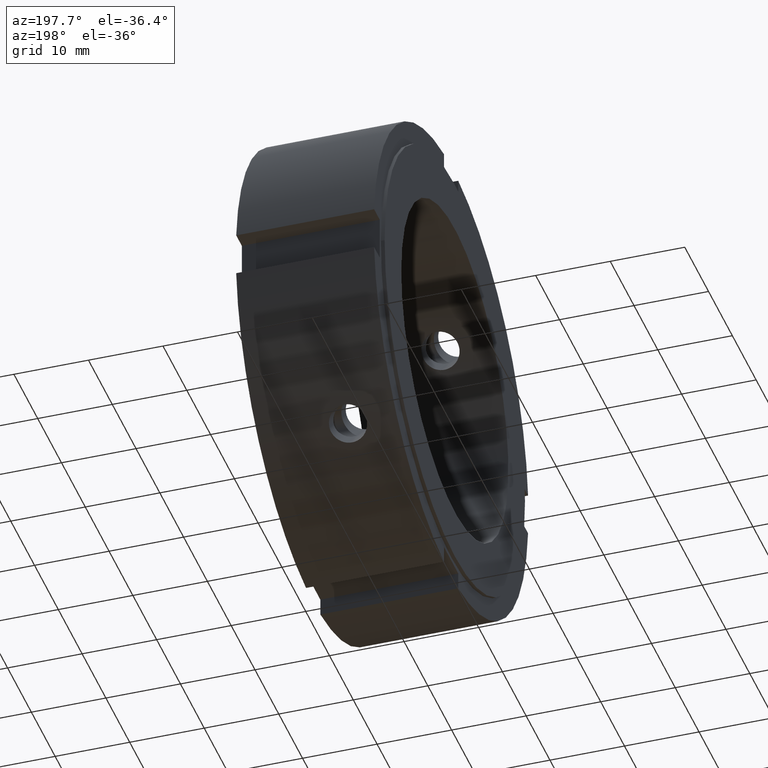
[diagram: clean part render]
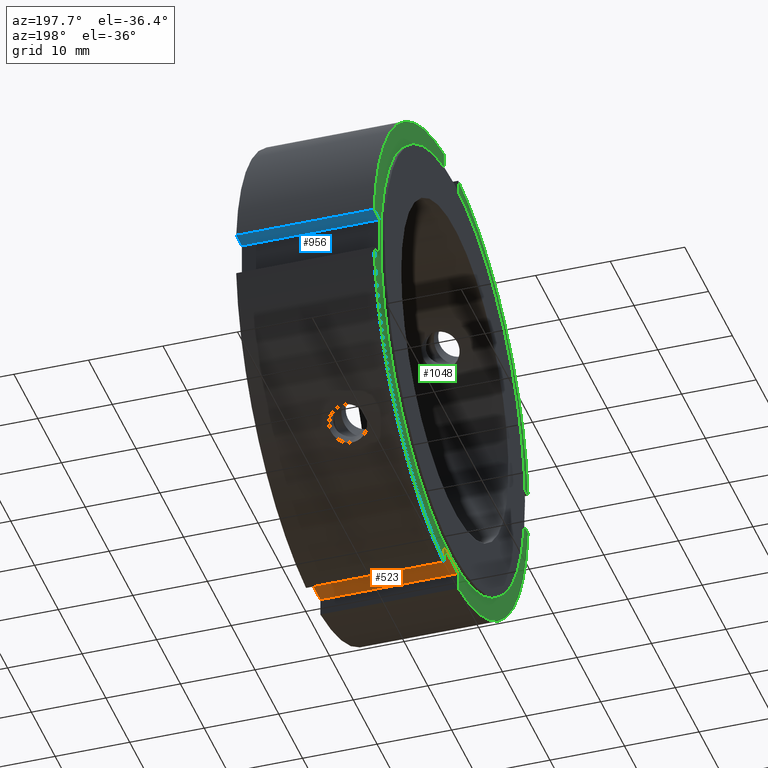
[diagram: same view with three faces highlighted in distinct colors, each labeled with its STEP entity id]
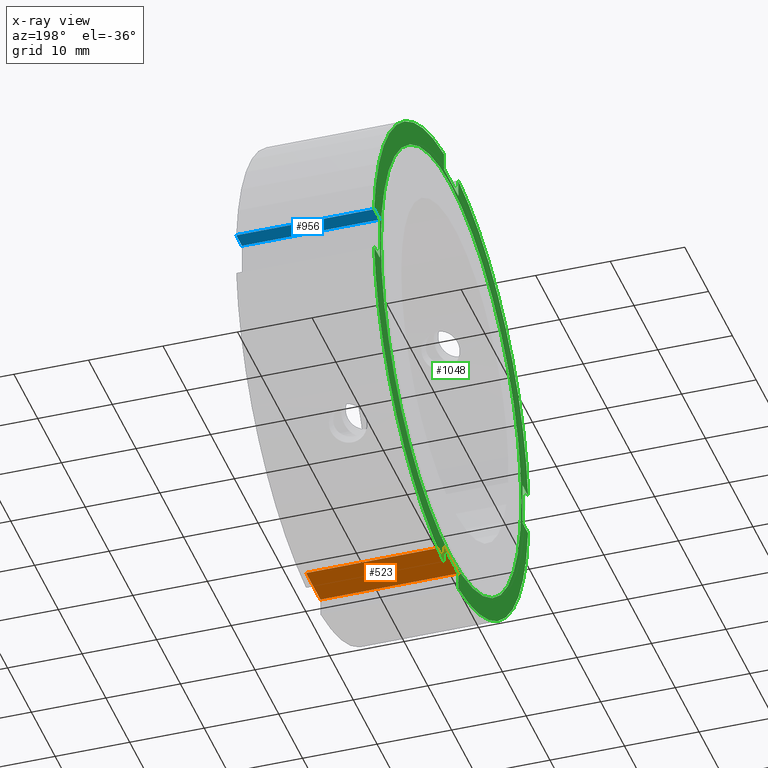
[diagram: x-ray of the same camera — body ghosted, the three highlighted faces saturated]
A machine part, auxiliary view with three faces highlighted in distinct colors.
The next image is the same camera in x-ray (body ghosted, the three faces saturated) — at least one of them is partly hidden behind the body in this view.
Their STEP definitions:

[orange] entity #523 — the highlighted planar face has unit normal (0, 0, 1).
#427=CARTESIAN_POINT('',(0.499999999999994,-3.000000000000005,-30.0));
#428=VERTEX_POINT('',#427);
#437=CARTESIAN_POINT('',(18.999999999999993,-3.000000000000005,-30.0));
#438=VERTEX_POINT('',#437);
#439=CARTESIAN_POINT('',(18.999999999999993,-3.000000000000005,-30.0));
#440=DIRECTION('',(-1.0,0.0,0.0));
#441=VECTOR('',#440,18.500000000000000);
#442=LINE('',#439,#441);
#443=EDGE_CURVE('',#438,#428,#442,.T.);
#469=CARTESIAN_POINT('',(0.499999999999994,2.999999999999994,-30.0));
#470=VERTEX_POINT('',#469);
#485=CARTESIAN_POINT('',(18.999999999999993,2.999999999999994,-30.0));
#486=VERTEX_POINT('',#485);
#493=CARTESIAN_POINT('',(18.999999999999993,2.999999999999994,-30.0));
#494=DIRECTION('',(-1.0,0.0,0.0));
#495=VECTOR('',#494,18.500000000000000);
#496=LINE('',#493,#495);
#497=EDGE_CURVE('',#486,#470,#496,.T.);
#502=CARTESIAN_POINT('',(18.999999999999993,2.999999999999994,-30.0));
#503=DIRECTION('',(0.0,0.0,1.0));
#504=DIRECTION('',(0.0,-1.0,0.0));
#505=AXIS2_PLACEMENT_3D('',#502,#503,#504);
#506=PLANE('',#505);
#507=CARTESIAN_POINT('',(0.499999999999993,2.999999999999993,-29.999999999999996));
#508=DIRECTION('',(0.0,-1.0,0.0));
#509=VECTOR('',#508,5.999999999999996);
#510=LINE('',#507,#509);
#511=EDGE_CURVE('',#470,#428,#510,.T.);
#512=ORIENTED_EDGE('',*,*,#511,.F.);
#513=ORIENTED_EDGE('',*,*,#497,.F.);
#514=CARTESIAN_POINT('',(18.999999999999993,-3.000000000000005,-29.999999999999996));
#515=DIRECTION('',(0.0,1.0,0.0));
#516=VECTOR('',#515,6.0);
#517=LINE('',#514,#516);
#518=EDGE_CURVE('',#438,#486,#517,.T.);
#519=ORIENTED_EDGE('',*,*,#518,.F.);
#520=ORIENTED_EDGE('',*,*,#443,.T.);
#521=EDGE_LOOP('',(#512,#513,#519,#520));
#522=FACE_OUTER_BOUND('',#521,.T.);
#523=ADVANCED_FACE('',(#522),#506,.F.);

[blue] entity #956 — the highlighted planar face has unit normal (0, 0, 1).
#734=CARTESIAN_POINT('',(18.999999999999993,32.361242250568814,2.999999999999999));
#735=VERTEX_POINT('',#734);
#743=CARTESIAN_POINT('',(0.499999999999994,32.361242250568807,2.999999999999999));
#744=VERTEX_POINT('',#743);
#745=CARTESIAN_POINT('',(18.999999999999993,32.361242250568814,2.999999999999999));
#746=DIRECTION('',(-1.0,0.0,0.0));
#747=VECTOR('',#746,18.500000000000000);
#748=LINE('',#745,#747);
#749=EDGE_CURVE('',#735,#744,#748,.T.);
#866=CARTESIAN_POINT('',(18.999999999999993,30.0,2.999999999999999));
#867=VERTEX_POINT('',#866);
#874=CARTESIAN_POINT('',(18.999999999999993,30.0,2.999999999999999));
#875=DIRECTION('',(0.0,1.0,0.0));
#876=VECTOR('',#875,2.361242250568814);
#877=LINE('',#874,#876);
#878=EDGE_CURVE('',#867,#735,#877,.T.);
#933=CARTESIAN_POINT('',(18.999999999999993,32.500000000000000,2.999999999999999));
#934=DIRECTION('',(0.0,0.0,1.0));
#935=DIRECTION('',(1.0,0.0,0.0));
#936=AXIS2_PLACEMENT_3D('',#933,#934,#935);
#937=PLANE('',#936);
#938=CARTESIAN_POINT('',(0.499999999999994,30.0,2.999999999999999));
#939=VERTEX_POINT('',#938);
#940=CARTESIAN_POINT('',(0.499999999999993,32.361242250568807,2.999999999999999));
#941=DIRECTION('',(0.0,-1.0,0.0));
#942=VECTOR('',#941,2.361242250568807);
#943=LINE('',#940,#942);
#944=EDGE_CURVE('',#744,#939,#943,.T.);
#945=ORIENTED_EDGE('',*,*,#944,.F.);
#946=ORIENTED_EDGE('',*,*,#749,.F.);
#947=ORIENTED_EDGE('',*,*,#878,.F.);
#948=CARTESIAN_POINT('',(18.999999999999993,30.0,2.999999999999999));
#949=DIRECTION('',(-1.0,0.0,0.0));
#950=VECTOR('',#949,18.500000000000000);
#951=LINE('',#948,#950);
#952=EDGE_CURVE('',#867,#939,#951,.T.);
#953=ORIENTED_EDGE('',*,*,#952,.T.);
#954=EDGE_LOOP('',(#945,#946,#947,#953));
#955=FACE_OUTER_BOUND('',#954,.T.);
#956=ADVANCED_FACE('',(#955),#937,.F.);

[green] entity #1048 — the highlighted planar face has unit normal (-1, 0, 0).
#427=CARTESIAN_POINT('',(0.499999999999994,-3.000000000000005,-30.0));
#428=VERTEX_POINT('',#427);
#429=CARTESIAN_POINT('',(0.499999999999994,-3.000000000000005,-32.361242250568807));
#430=VERTEX_POINT('',#429);
#431=CARTESIAN_POINT('',(0.499999999999993,-3.000000000000007,-30.0));
#432=DIRECTION('',(0.0,0.0,-1.0));
#433=VECTOR('',#432,2.361242250568807);
#434=LINE('',#431,#433);
#435=EDGE_CURVE('',#428,#430,#434,.T.);
#467=CARTESIAN_POINT('',(0.499999999999994,2.999999999999993,-32.361242250568807));
#468=VERTEX_POINT('',#467);
#469=CARTESIAN_POINT('',(0.499999999999994,2.999999999999994,-30.0));
#470=VERTEX_POINT('',#469);
#471=CARTESIAN_POINT('',(0.499999999999993,2.999999999999994,-32.361242250568807));
#472=DIRECTION('',(0.0,0.0,1.0));
#473=VECTOR('',#472,2.361242250568807);
#474=LINE('',#471,#473);
#475=EDGE_CURVE('',#468,#470,#474,.T.);
#507=CARTESIAN_POINT('',(0.499999999999993,2.999999999999993,-29.999999999999996));
#508=DIRECTION('',(0.0,-1.0,0.0));
#509=VECTOR('',#508,5.999999999999996);
#510=LINE('',#507,#509);
#511=EDGE_CURVE('',#470,#428,#510,.T.);
#529=CARTESIAN_POINT('',(0.499999999999994,-30.0,3.000000000000003));
#530=VERTEX_POINT('',#529);
#531=CARTESIAN_POINT('',(0.499999999999994,-32.361242250568807,3.000000000000003));
#532=VERTEX_POINT('',#531);
#533=CARTESIAN_POINT('',(0.499999999999993,-30.000000000000004,3.000000000000003));
#534=DIRECTION('',(0.0,-1.0,0.0));
#535=VECTOR('',#534,2.361242250568804);
#536=LINE('',#533,#535);
#537=EDGE_CURVE('',#530,#532,#536,.T.);
#569=CARTESIAN_POINT('',(0.499999999999994,-32.361242250568807,-2.999999999999994));
#570=VERTEX_POINT('',#569);
#571=CARTESIAN_POINT('',(0.499999999999994,-30.0,-2.999999999999996));
#572=VERTEX_POINT('',#571);
#573=CARTESIAN_POINT('',(0.499999999999993,-32.361242250568807,-2.999999999999994));
#574=DIRECTION('',(0.0,1.0,0.0));
#575=VECTOR('',#574,2.361242250568804);
#576=LINE('',#573,#575);
#577=EDGE_CURVE('',#570,#572,#576,.T.);
#609=CARTESIAN_POINT('',(0.499999999999993,-30.0,-2.999999999999996));
#610=DIRECTION('',(0.0,0.0,1.0));
#611=VECTOR('',#610,5.999999999999998);
#612=LINE('',#609,#611);
#613=EDGE_CURVE('',#572,#530,#612,.T.);
#631=CARTESIAN_POINT('',(0.499999999999994,3.000000000000001,30.0));
#632=VERTEX_POINT('',#631);
#633=CARTESIAN_POINT('',(0.499999999999994,3.000000000000001,32.361242250568807));
#634=VERTEX_POINT('',#633);
#635=CARTESIAN_POINT('',(0.499999999999993,3.000000000000003,30.0));
#636=DIRECTION('',(0.0,0.0,1.0));
#637=VECTOR('',#636,2.361242250568807);
#638=LINE('',#635,#637);
#639=EDGE_CURVE('',#632,#634,#638,.T.);
#671=CARTESIAN_POINT('',(0.499999999999994,-2.999999999999996,32.361242250568807));
#672=VERTEX_POINT('',#671);
#673=CARTESIAN_POINT('',(0.499999999999994,-2.999999999999998,30.0));
#674=VERTEX_POINT('',#673);
#675=CARTESIAN_POINT('',(0.499999999999993,-2.999999999999998,32.361242250568807));
#676=DIRECTION('',(0.0,0.0,-1.0));
#677=VECTOR('',#676,2.361242250568807);
#678=LINE('',#675,#677);
#679=EDGE_CURVE('',#672,#674,#678,.T.);
#711=CARTESIAN_POINT('',(0.499999999999993,-2.999999999999996,30.0));
#712=DIRECTION('',(0.0,1.0,0.0));
#713=VECTOR('',#712,5.999999999999998);
#714=LINE('',#711,#713);
#715=EDGE_CURVE('',#674,#632,#714,.T.);
#743=CARTESIAN_POINT('',(0.499999999999994,32.361242250568807,2.999999999999999));
#744=VERTEX_POINT('',#743);
#751=CARTESIAN_POINT('',(0.499999999999994,0.0,0.0));
#752=DIRECTION('',(1.0,0.0,0.0));
#753=DIRECTION('',(0.0,1.0,0.0));
#754=AXIS2_PLACEMENT_3D('',#751,#752,#753);
#755=CIRCLE('',#754,32.499999999999993);
#756=EDGE_CURVE('',#744,#634,#755,.T.);
#775=CARTESIAN_POINT('',(0.499999999999994,0.0,0.0));
#776=DIRECTION('',(1.0,0.0,0.0));
#777=DIRECTION('',(0.0,1.0,0.0));
#778=AXIS2_PLACEMENT_3D('',#775,#776,#777);
#779=CIRCLE('',#778,32.499999999999993);
#780=EDGE_CURVE('',#672,#532,#779,.T.);
#794=CARTESIAN_POINT('',(0.499999999999994,32.361242250568807,-2.999999999999999));
#795=VERTEX_POINT('',#794);
#796=CARTESIAN_POINT('',(0.499999999999994,0.0,0.0));
#797=DIRECTION('',(1.0,0.0,0.0));
#798=DIRECTION('',(0.0,1.0,0.0));
#799=AXIS2_PLACEMENT_3D('',#796,#797,#798);
#800=CIRCLE('',#799,32.499999999999993);
#801=EDGE_CURVE('',#468,#795,#800,.T.);
#839=CARTESIAN_POINT('',(0.499999999999994,0.0,0.0));
#840=DIRECTION('',(1.0,0.0,0.0));
#841=DIRECTION('',(0.0,1.0,0.0));
#842=AXIS2_PLACEMENT_3D('',#839,#840,#841);
#843=CIRCLE('',#842,32.499999999999993);
#844=EDGE_CURVE('',#570,#430,#843,.T.);
#914=CARTESIAN_POINT('',(0.499999999999994,30.0,-2.999999999999999));
#915=VERTEX_POINT('',#914);
#916=CARTESIAN_POINT('',(0.499999999999993,30.0,-2.999999999999999));
#917=DIRECTION('',(0.0,1.0,0.0));
#918=VECTOR('',#917,2.361242250568807);
#919=LINE('',#916,#918);
#920=EDGE_CURVE('',#915,#795,#919,.T.);
#938=CARTESIAN_POINT('',(0.499999999999994,30.0,2.999999999999999));
#939=VERTEX_POINT('',#938);
#940=CARTESIAN_POINT('',(0.499999999999993,32.361242250568807,2.999999999999999));
#941=DIRECTION('',(0.0,-1.0,0.0));
#942=VECTOR('',#941,2.361242250568807);
#943=LINE('',#940,#942);
#944=EDGE_CURVE('',#744,#939,#943,.T.);
#962=CARTESIAN_POINT('',(0.499999999999993,30.0,2.999999999999999));
#963=DIRECTION('',(0.0,0.0,-1.0));
#964=VECTOR('',#963,5.999999999999998);
#965=LINE('',#962,#964);
#966=EDGE_CURVE('',#939,#915,#965,.T.);
#1007=CARTESIAN_POINT('',(0.499999999999992,29.500000000000000,0.0));
#1008=VERTEX_POINT('',#1007);
#1009=CARTESIAN_POINT('',(0.499999999999992,0.0,0.0));
#1010=DIRECTION('',(1.0,0.0,0.0));
#1011=DIRECTION('',(0.0,1.0,0.0));
#1012=AXIS2_PLACEMENT_3D('',#1009,#1010,#1011);
#1013=CIRCLE('',#1012,29.500000000000000);
#1014=EDGE_CURVE('',#1008,#1008,#1013,.T.);
#1022=CARTESIAN_POINT('',(0.499999999999993,30.999999999999996,0.0));
#1023=DIRECTION('',(-1.0,0.0,0.0));
#1024=DIRECTION('',(0.0,0.0,1.0));
#1025=AXIS2_PLACEMENT_3D('',#1022,#1023,#1024);
#1026=PLANE('',#1025);
#1027=ORIENTED_EDGE('',*,*,#435,.T.);
#1028=ORIENTED_EDGE('',*,*,#844,.F.);
#1029=ORIENTED_EDGE('',*,*,#577,.T.);
#1030=ORIENTED_EDGE('',*,*,#613,.T.);
#1031=ORIENTED_EDGE('',*,*,#537,.T.);
#1032=ORIENTED_EDGE('',*,*,#780,.F.);
#1033=ORIENTED_EDGE('',*,*,#679,.T.);
#1034=ORIENTED_EDGE('',*,*,#715,.T.);
#1035=ORIENTED_EDGE('',*,*,#639,.T.);
#1036=ORIENTED_EDGE('',*,*,#756,.F.);
#1037=ORIENTED_EDGE('',*,*,#944,.T.);
#1038=ORIENTED_EDGE('',*,*,#966,.T.);
#1039=ORIENTED_EDGE('',*,*,#920,.T.);
#1040=ORIENTED_EDGE('',*,*,#801,.F.);
#1041=ORIENTED_EDGE('',*,*,#475,.T.);
#1042=ORIENTED_EDGE('',*,*,#511,.T.);
#1043=EDGE_LOOP('',(#1027,#1028,#1029,#1030,#1031,#1032,#1033,#1034,#1035,#1036,#1037,#1038,#1039,#1040,#1041,#1042));
#1044=FACE_OUTER_BOUND('',#1043,.T.);
#1045=ORIENTED_EDGE('',*,*,#1014,.T.);
#1046=EDGE_LOOP('',(#1045));
#1047=FACE_BOUND('',#1046,.T.);
#1048=ADVANCED_FACE('',(#1044,#1047),#1026,.T.);